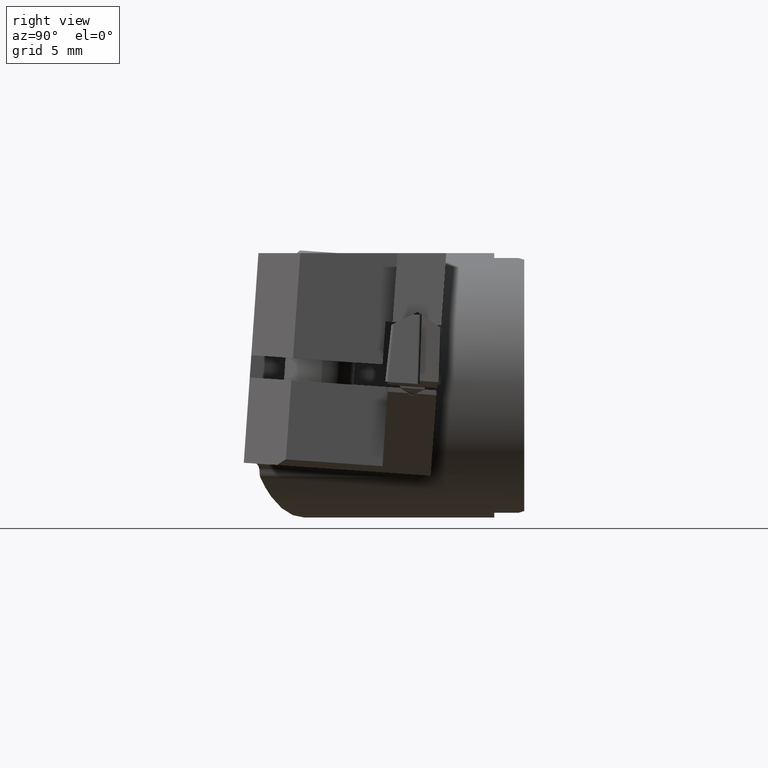
[diagram: clean part render]
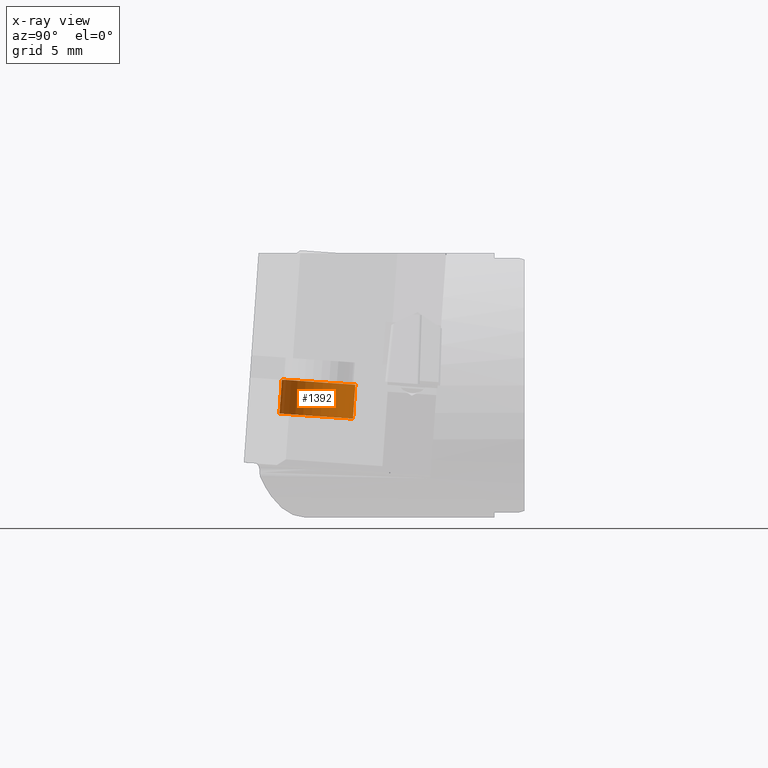
[diagram: x-ray — body ghosted, one internal face saturated and labeled with its STEP entity id]
A machine part, right view, then the same camera in x-ray: the body is ghosted and one INTERNAL B-rep face — a face not visible from any outside direction — is saturated and labeled: STEP entity #1392.
In plain terms, the highlighted cylindrical surface (partial cylindrical patch) has radius 2.65 mm, axis along (-0, -0.0698, -0.9976).
Its self-contained STEP definition (entity closure, byte-faithful):
#936=VERTEX_POINT('NONE',#2370);
#970=VERTEX_POINT('NONE',#2406);
#1216=VERTEX_POINT('NONE',#2676);
#1358=EDGE_CURVE('NONE',#1216,#1696,#2832,.T.);
#1392=ADVANCED_FACE('NONE',(#2871),#2872,.F.);
#1658=EDGE_CURVE('NONE',#936,#970,#3161,.T.);
#1696=VERTEX_POINT('NONE',#3205);
#1838=EDGE_CURVE('NONE',#1696,#970,#3363,.F.);
#2080=EDGE_CURVE('NONE',#936,#1216,#3634,.F.);
#2370=CARTESIAN_POINT('',(17.0,-12.1371919109479,0.0367371988334066));
#2406=CARTESIAN_POINT('',(17.0,-12.3076507411667,-2.40093764263557));
#2676=CARTESIAN_POINT('',(17.0,-17.424281377325,0.406446509677272));
#2832=LINE('',#4961,#4962);
#2871=FACE_OUTER_BOUND('',#5022,.T.);
#2872=CYLINDRICAL_SURFACE('',#5023,2.65);
#3161=LINE('',#5597,#5598);
#3205=CARTESIAN_POINT('',(17.0,-17.5947402075438,-2.03122833179176));
#3363=CIRCLE('',#6016,2.65);
#3634=CIRCLE('',#6490,2.65);
#4961=CARTESIAN_POINT('',(17.0,-18.0274758786703,-8.21963674194643));
#4962=VECTOR('',#7241,1000.0);
#5022=EDGE_LOOP('',(#7301,#7302,#7303,#7304));
#5023=AXIS2_PLACEMENT_3D('',#7305,#7306,#7307);
#5597=CARTESIAN_POINT('',(17.0,-12.7403864122932,-8.58934605279026));
#5598=VECTOR('',#7596,1000.0);
#6016=AXIS2_PLACEMENT_3D('',#7810,#7811,#7812);
#6490=AXIS2_PLACEMENT_3D('',#8135,#8136,#8137);
#7241=DIRECTION('',(0.0,-0.0697564737441182,-0.997564050259825));
#7301=ORIENTED_EDGE('',*,*,#2080,.T.);
#7302=ORIENTED_EDGE('',*,*,#1358,.T.);
#7303=ORIENTED_EDGE('',*,*,#1838,.T.);
#7304=ORIENTED_EDGE('',*,*,#1658,.F.);
#7305=CARTESIAN_POINT('',(17.0,-15.3839311454818,-8.40449139736835));
#7306=DIRECTION('',(-0.0,-0.0697564737441181,-0.997564050259825));
#7307=DIRECTION('',(0.0,0.997564050259825,-0.0697564737441181));
#7596=DIRECTION('',(0.0,-0.0697564737441182,-0.997564050259825));
#7810=CARTESIAN_POINT('',(17.0,-14.9511954743553,-2.21608298721367));
#7811=DIRECTION('',(0.0,0.0697564737441181,0.997564050259825));
#7812=DIRECTION('',(0.0,0.997564050259825,-0.0697564737441181));
#8135=CARTESIAN_POINT('',(17.0,-14.7807366441365,0.221591854255383));
#8136=DIRECTION('',(-7.37854832959111E-019,-0.0697564737441255,-0.997564050259824));
#8137=DIRECTION('',(-5.44834258669263E-033,0.997564050259824,-0.0697564737441255));